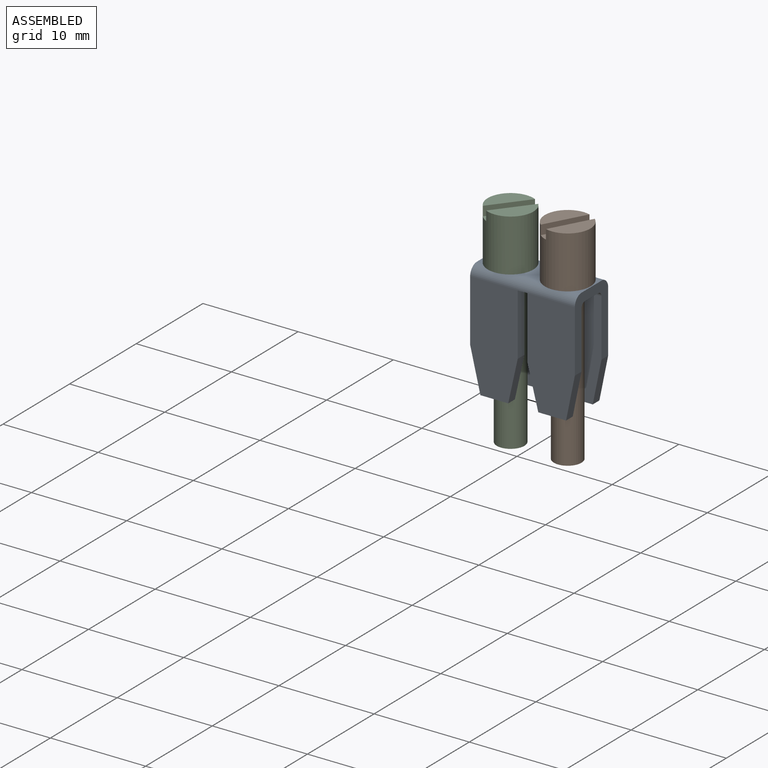
[diagram: assembled view]
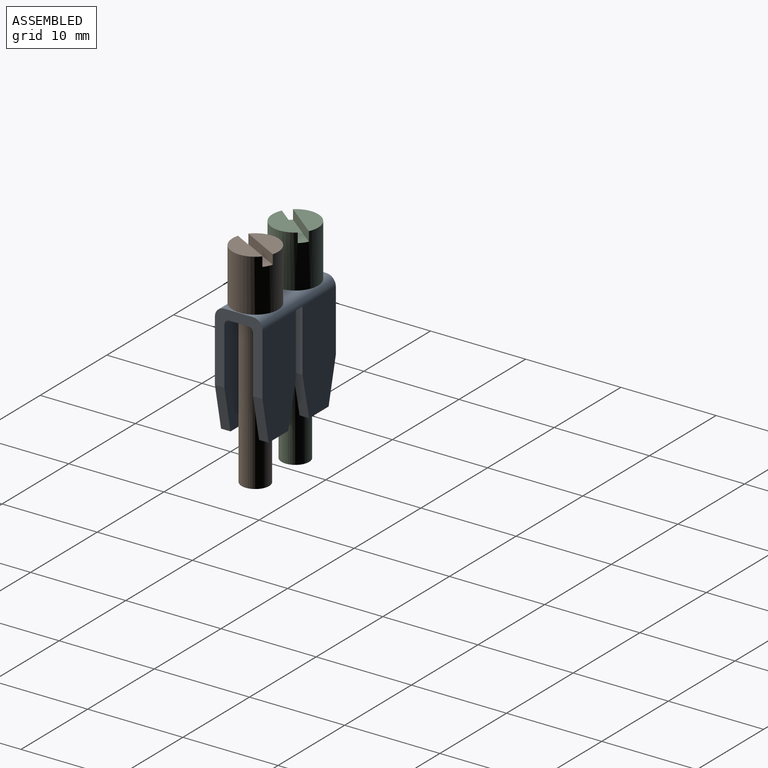
[diagram: assembled view, second angle]
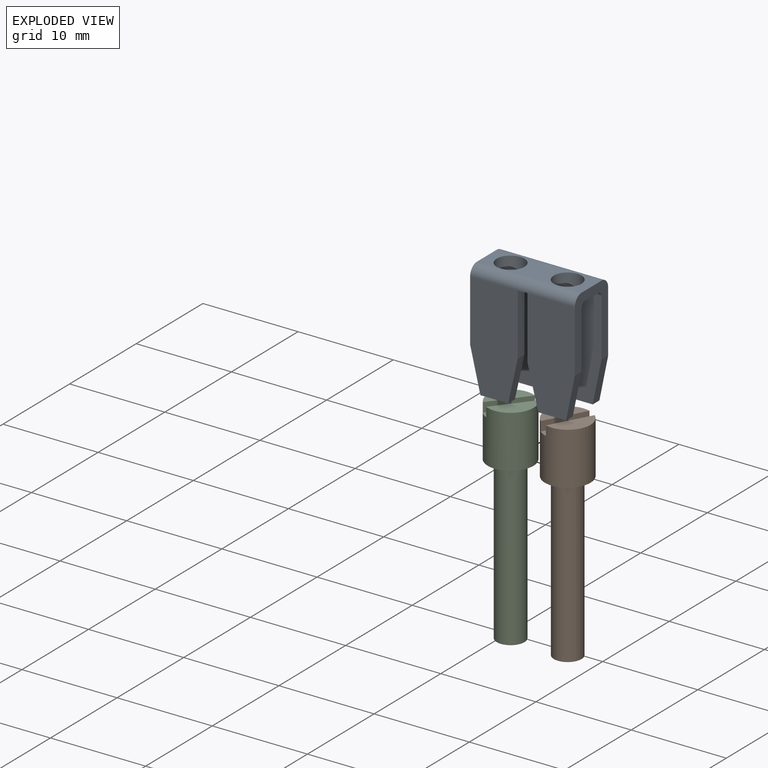
[diagram: exploded view]
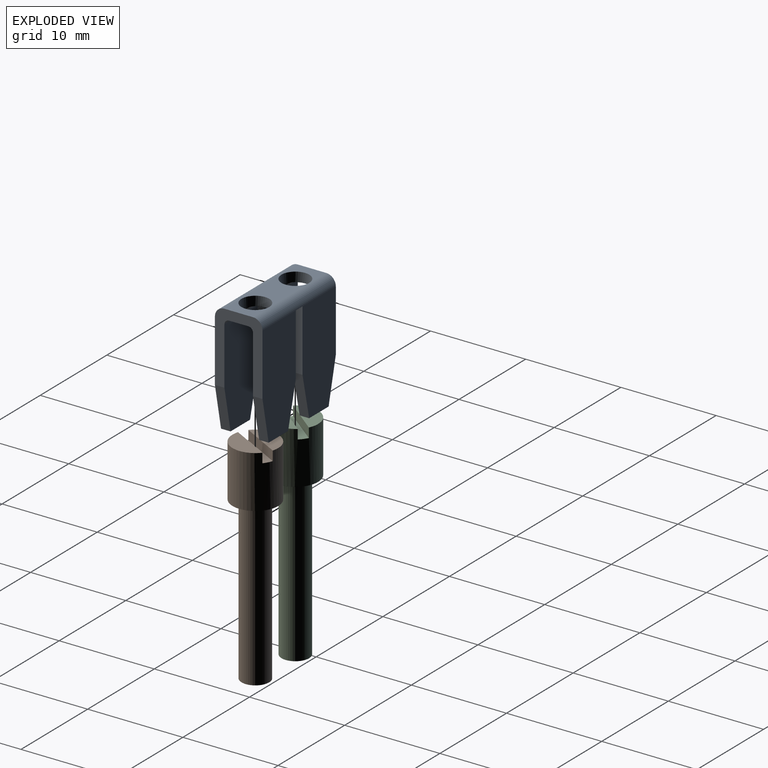
[diagram: exploded view, second angle]
ASSEMBLY  parts=3 mates=2
PART A: 38 faces, bbox 11x5x12 mm
  f0: plane 2x1.44mm, normal (0,0,-1), area 2.3mm2, adj f19,f30,f31,f37
  f1: plane 5x3.87mm, normal (0,0,-1), area 9.7mm2, adj f10,f11,f12,f13,f30,f31,f32,f33
  f2: plane 11x5mm, normal (0,-1,0), area 50.3mm2, adj f5,f13,f15,f17,f18,f35
  f3: plane 11x5mm, normal (0,1,0), area 50.3mm2, adj f6,f8,f10,f19,f20,f34
  f4: plane 2.92x1mm, normal (0,0,-1), area 2.9mm2, adj f7,f9,f24,f26
  f5: plane 2.92x1mm, normal (0,0,-1), area 2.9mm2, adj f2,f15,f17,f29
  f6: plane 4.5x1.08mm, normal (-0.97,0,-0.23), area 4.6mm2, adj f3,f19,f20,f27
  f7: plane 4.5x1.08mm, normal (-0.97,0,-0.23), area 4.6mm2, adj f4,f19,f24,f26
  f8: plane 4.5x1mm, normal (0.98,0,-0.22), area 4.6mm2, adj f3,f10,f20,f27
  f9: plane 4.5x1mm, normal (0.98,0,-0.22), area 4.6mm2, adj f4,f11,f24,f26
  f10: plane 6.5x1.5mm, normal (1,0,0), area 6.6mm2, adj f1,f3,f8,f27,f30
  f11: plane 6.5x1.5mm, normal (1,0,0), area 6.6mm2, adj f1,f9,f24,f26,f31
  f12: plane 6.5x1.5mm, normal (-1,0,0), area 6.6mm2, adj f1,f14,f25,f28,f33
  f13: plane 6.5x1.5mm, normal (-1,0,0), area 6.6mm2, adj f1,f2,f15,f29,f32
  f14: plane 4.5x1.16mm, normal (-0.97,0,-0.25), area 4.6mm2, adj f12,f22,f25,f28
  f15: plane 4.5x1.16mm, normal (-0.97,0,-0.25), area 4.6mm2, adj f2,f5,f13,f29
  f16: plane 4.5x1mm, normal (0.98,0,-0.2), area 4.6mm2, adj f18,f22,f25,f28
  f17: plane 4.5x1mm, normal (0.98,0,-0.2), area 4.6mm2, adj f2,f5,f18,f29
  f18: plane 7.5x5mm, normal (1,0,0), area 17.7mm2, adj f2,f16,f17,f21,f23,f25,f28,f29
  f19: plane 7.5x5mm, normal (-1,0,0), area 17.7mm2, adj f0,f3,f6,f7,f23,f24,f26,f27
  f20: plane 2.92x1mm, normal (0,0,-1), area 2.9mm2, adj f3,f6,f8,f27
  f21: plane 2x1.44mm, normal (0,0,-1), area 2.3mm2, adj f18,f32,f33,f36
  f22: plane 2.92x1mm, normal (0,0,-1), area 2.9mm2, adj f14,f16,f25,f28
  f23: plane 11x3mm, normal (0,0,1), area 19.6mm2, adj f18,f19,f34,f35,f36,f37
  f24: plane 11x5mm, normal (0,-1,0), area 50.3mm2, adj f4,f7,f9,f11,f19,f35
  f25: plane 11x5mm, normal (0,1,0), area 50.3mm2, adj f12,f14,f16,f18,f22,f34
  f26: plane 10.5x5mm, normal (0,1,0), area 47.8mm2, adj f4,f7,f9,f11,f19,f31
  f27: plane 10.5x5mm, normal (0,-1,0), area 47.8mm2, adj f6,f8,f10,f19,f20,f30
  f28: plane 10.5x5mm, normal (0,-1,0), area 47.8mm2, adj f12,f14,f16,f18,f22,f33
  f29: plane 10.5x5mm, normal (0,1,0), area 47.8mm2, adj f5,f13,f15,f17,f18,f32
  f30: cylinder r=0.5mm len=5mm, axis (-1,0,0), area 3.1mm2, adj f0,f1,f10,f19,f27,f37
  f31: cylinder r=0.5mm len=5mm, axis (-1,0,0), area 3.1mm2, adj f0,f1,f11,f19,f26,f37
  f32: cylinder r=0.5mm len=5mm, axis (-1,0,0), area 3.1mm2, adj f1,f13,f18,f21,f29,f36
  f33: cylinder r=0.5mm len=5mm, axis (-1,0,0), area 3.1mm2, adj f1,f12,f18,f21,f28,f36
  f34: cylinder r=1mm len=11mm, axis (-1,0,0), area 17.3mm2, adj f1,f3,f18,f19,f23,f25
  f35: cylinder r=1mm len=11mm, axis (1,0,0), area 17.3mm2, adj f1,f2,f18,f19,f23,f24
  f36: cylinder r=1.46mm len=2.92mm, axis (0,0,1), area 9.9mm2, adj f1,f21,f23,f32,f33
  f37: cylinder r=1.46mm len=2.92mm, axis (0,0,1), area 9.9mm2, adj f0,f1,f23,f30,f31
PART B: 9 faces, bbox 4.8x4.8x22.5 mm
  f0: plane 4.22x3.08mm, normal (0,0,1), area 6.7mm2, adj f3,f6
  f1: cylinder r=1.45mm len=17mm, axis (0,0,1), area 154.9mm2, adj f2,f5
  f2: plane 2.9x2.9mm, normal (0,0,-1), area 6.6mm2, adj f1
  f3: cylinder r=2.4mm len=5.5mm, axis (0,0,-1), area 80.9mm2, adj f0,f4,f5,f6,f7,f8
  f4: plane 4.22x3.08mm, normal (0,0,1), area 6.7mm2, adj f3,f7
  f5: plane 4.8x4.8mm, normal (0,0,-1), area 11.5mm2, adj f1,f3
  f6: plane 4.12x2.24mm, normal (0.88,-0.48,0), area 4.7mm2, adj f0,f3,f8
  f7: plane 4.12x2.24mm, normal (-0.88,0.48,0), area 4.7mm2, adj f3,f4,f8
  f8: plane 4.6x3.12mm, normal (0,0,1), area 4.8mm2, adj f3,f6,f7
PART C: 9 faces, bbox 4.8x4.8x22.5 mm
  f0: plane 3.94x3.46mm, normal (0,0,1), area 6.7mm2, adj f3,f6
  f1: cylinder r=1.45mm len=17mm, axis (0,0,1), area 154.9mm2, adj f2,f5
  f2: plane 2.9x2.9mm, normal (0,0,-1), area 6.6mm2, adj f1
  f3: cylinder r=2.4mm len=5.5mm, axis (0,0,-1), area 80.9mm2, adj f0,f4,f5,f6,f7,f8
  f4: plane 3.94x3.46mm, normal (0,0,1), area 6.7mm2, adj f3,f7
  f5: plane 4.8x4.8mm, normal (0,0,-1), area 11.5mm2, adj f1,f3
  f6: plane 3.69x2.9mm, normal (0.79,-0.62,0), area 4.7mm2, adj f0,f3,f8
  f7: plane 3.69x2.9mm, normal (-0.79,0.62,0), area 4.7mm2, adj f3,f4,f8
  f8: plane 4.31x3.69mm, normal (0,0,1), area 4.8mm2, adj f3,f6,f7
PLACE A t=(-11.25,1.2,-3.23)mm fixed
PLACE B t=(-11.25,1.2,-3.23)mm
PLACE C t=(-11.25,1.2,-3.23)mm
MATE fastened C.f1 <-> A.f37  axis (0,0,1) through (-8.75,-1.3,14.27)mm
MATE fastened B.f1 <-> A.f36  axis (0,0,1) through (-2.75,-1.3,13.27)mm
